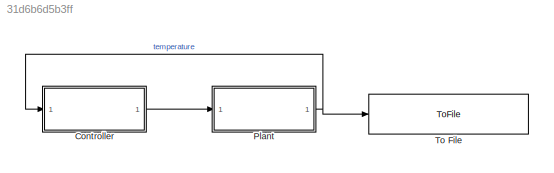
MODEL slx_31d6b6d5b3ff
KIND model
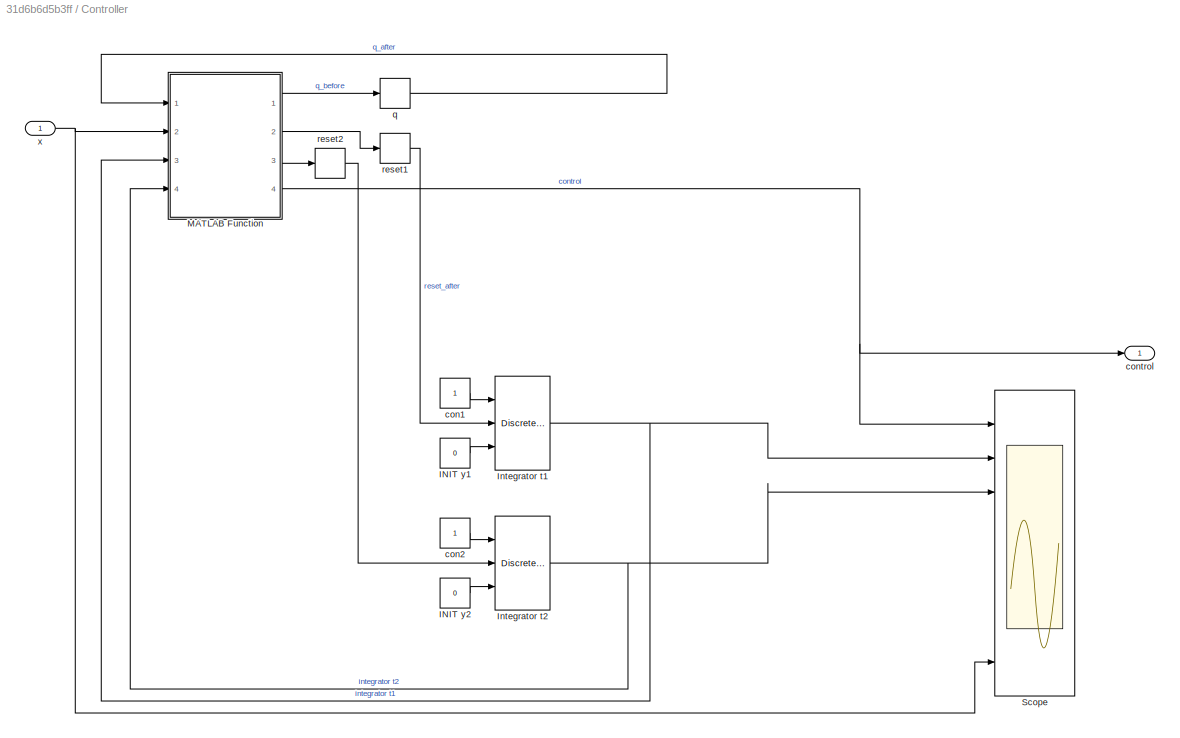
BLOCK [SubSystem] Controller
  Ports = [1, 1]
  RequestExecContextInheritance = off
BLOCK [Constant] Controller/INIT y1
  Value = 0
BLOCK [Constant] Controller/INIT y2
  Value = 0
BLOCK [DiscreteIntegrator] Controller/Integrator t1
  ExternalReset = either
  InitialCondition = 510
  InitialConditionSetting = State (most efficient)
  InitialConditionSource = external
  Ports = [3, 1]
  SampleTime = -1
BLOCK [DiscreteIntegrator] Controller/Integrator t2
  ExternalReset = either
  InitialCondition = 510
  InitialConditionSetting = State (most efficient)
  InitialConditionSource = external
  Ports = [3, 1]
  SampleTime = -1
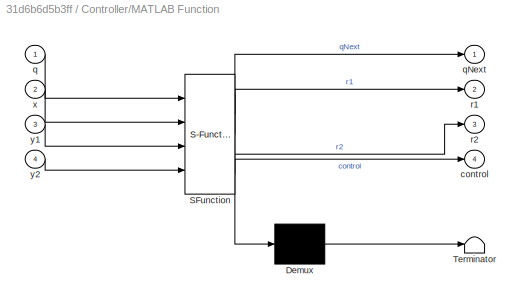
BLOCK [SubSystem] Controller/MATLAB Function
  ErrorFcn = Stateflow.Translate.translate
  PermitHierarchicalResolution = ExplicitOnly
  Ports = [4, 4]
  Priority = 1
  RequestExecContextInheritance = off
  SFBlockType = MATLAB Function
  TreatAsAtomicUnit = on
BLOCK [Demux] Controller/MATLAB Function/ Demux 
  Outputs = 1
  Ports = [1, 1]
BLOCK [S-Function] Controller/MATLAB Function/ SFunction 
  EnableBusSupport = on
  FunctionName = sf_sfun
  PortCounts = [4 5]
  Ports = [4, 5]
  Tag = Stateflow S-Function nuclearReactor 2
BLOCK [Terminator] Controller/MATLAB Function/ Terminator 
BLOCK [Outport] Controller/MATLAB Function/control
  IconDisplay = Port number
  Port = 4
BLOCK [Inport] Controller/MATLAB Function/q
  IconDisplay = Port number
BLOCK [Outport] Controller/MATLAB Function/qNext
  IconDisplay = Port number
BLOCK [Outport] Controller/MATLAB Function/r1
  IconDisplay = Port number
  Port = 2
BLOCK [Outport] Controller/MATLAB Function/r2
  IconDisplay = Port number
  Port = 3
BLOCK [Inport] Controller/MATLAB Function/x
  IconDisplay = Port number
  Port = 2
BLOCK [Inport] Controller/MATLAB Function/y1
  IconDisplay = Port number
  Port = 3
BLOCK [Inport] Controller/MATLAB Function/y2
  IconDisplay = Port number
  Port = 4
BLOCK [Scope] Controller/Scope
  Floating = off
  LimitDataPoints = off
  NumInputPorts = 8
  Ports = [8]
  ShowLegends = on
  TickLabels = on
  YMax = 1~1~1~1~1~1~1~1
  YMin = 0~0~0~0~0~0~0~0
  ZoomMode = xonly
BLOCK [Constant] Controller/con1
BLOCK [Constant] Controller/con2
BLOCK [Outport] Controller/control
  IconDisplay = Port number
BLOCK [Memory] Controller/q
  LinearizeMemory = on
BLOCK [Memory] Controller/reset1
  LinearizeMemory = on
BLOCK [Memory] Controller/reset2
  LinearizeMemory = on
BLOCK [Inport] Controller/x
  IconDisplay = Port number
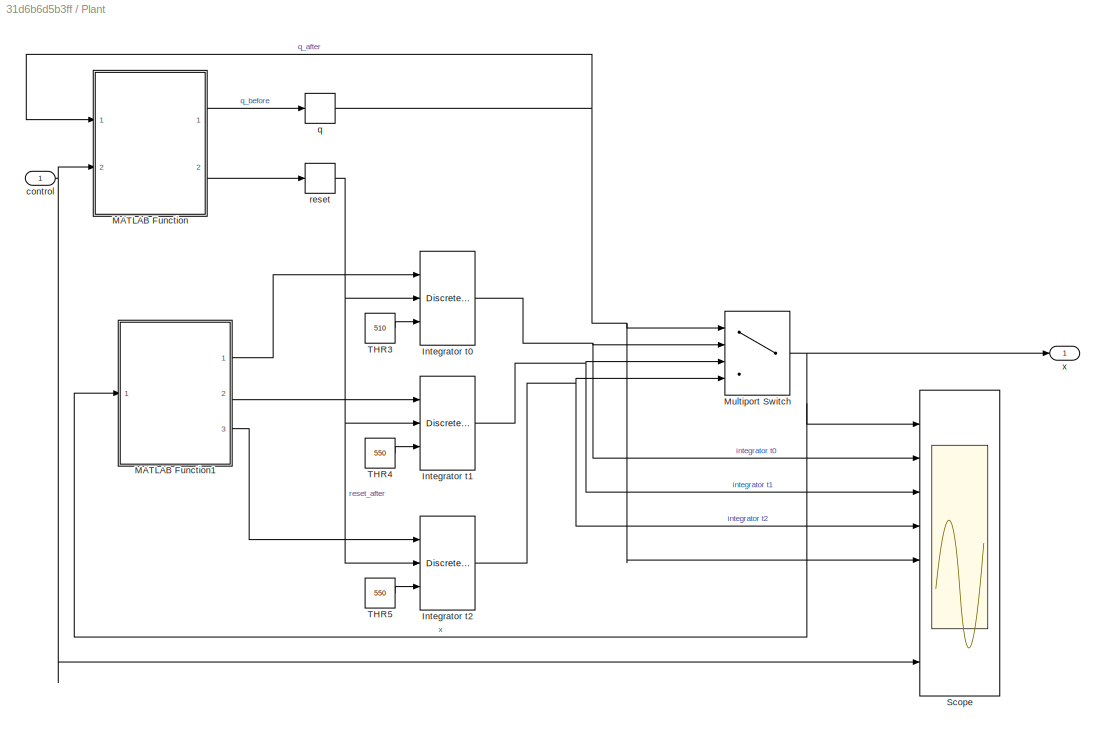
BLOCK [SubSystem] Plant
  Ports = [1, 1]
  RequestExecContextInheritance = off
BLOCK [DiscreteIntegrator] Plant/Integrator t0
  ExternalReset = either
  InitialCondition = 510
  InitialConditionSetting = State (most efficient)
  InitialConditionSource = external
  Ports = [3, 1]
  SampleTime = -1
BLOCK [DiscreteIntegrator] Plant/Integrator t1
  ExternalReset = either
  InitialCondition = 510
  InitialConditionSetting = State (most efficient)
  InitialConditionSource = external
  Ports = [3, 1]
  SampleTime = -1
BLOCK [DiscreteIntegrator] Plant/Integrator t2
  ExternalReset = either
  InitialCondition = 510
  InitialConditionSetting = State (most efficient)
  InitialConditionSource = external
  Ports = [3, 1]
  SampleTime = -1
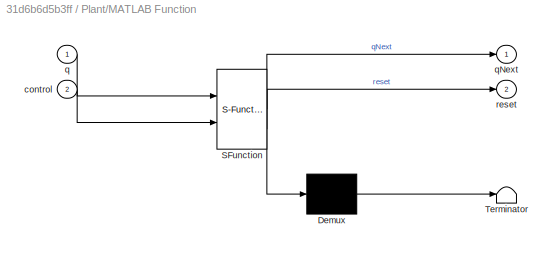
BLOCK [SubSystem] Plant/MATLAB Function
  ErrorFcn = Stateflow.Translate.translate
  PermitHierarchicalResolution = ExplicitOnly
  Ports = [2, 2]
  Priority = 1
  RequestExecContextInheritance = off
  SFBlockType = MATLAB Function
  TreatAsAtomicUnit = on
BLOCK [Demux] Plant/MATLAB Function/ Demux 
  Outputs = 1
  Ports = [1, 1]
BLOCK [S-Function] Plant/MATLAB Function/ SFunction 
  EnableBusSupport = on
  FunctionName = sf_sfun
  PortCounts = [2 3]
  Ports = [2, 3]
  Tag = Stateflow S-Function nuclearReactor 1
BLOCK [Terminator] Plant/MATLAB Function/ Terminator 
BLOCK [Inport] Plant/MATLAB Function/control
  IconDisplay = Port number
  Port = 2
BLOCK [Inport] Plant/MATLAB Function/q
  IconDisplay = Port number
BLOCK [Outport] Plant/MATLAB Function/qNext
  IconDisplay = Port number
BLOCK [Outport] Plant/MATLAB Function/reset
  IconDisplay = Port number
  Port = 2
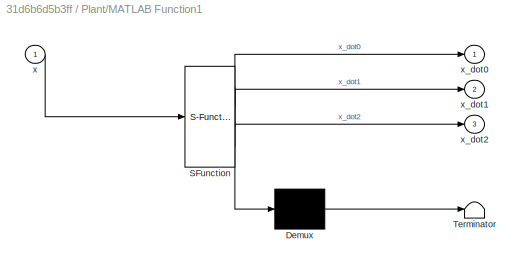
BLOCK [SubSystem] Plant/MATLAB Function1
  ErrorFcn = Stateflow.Translate.translate
  PermitHierarchicalResolution = ExplicitOnly
  Ports = [1, 3]
  Priority = 1
  RequestExecContextInheritance = off
  SFBlockType = MATLAB Function
  TreatAsAtomicUnit = on
BLOCK [Demux] Plant/MATLAB Function1/ Demux 
  Outputs = 1
  Ports = [1, 1]
BLOCK [S-Function] Plant/MATLAB Function1/ SFunction 
  EnableBusSupport = on
  FunctionName = sf_sfun
  PortCounts = [1 4]
  Ports = [1, 4]
  Tag = Stateflow S-Function nuclearReactor 3
BLOCK [Terminator] Plant/MATLAB Function1/ Terminator 
BLOCK [Inport] Plant/MATLAB Function1/x
  IconDisplay = Port number
BLOCK [Outport] Plant/MATLAB Function1/x_dot0
  IconDisplay = Port number
BLOCK [Outport] Plant/MATLAB Function1/x_dot1
  IconDisplay = Port number
  Port = 2
BLOCK [Outport] Plant/MATLAB Function1/x_dot2
  IconDisplay = Port number
  Port = 3
BLOCK [MultiPortSwitch] Plant/Multiport Switch
  DataPortOrder = Zero-based contiguous
  InputSameDT = off
  Ports = [4, 1]
  SaturateOnIntegerOverflow = off
BLOCK [Scope] Plant/Scope
  Floating = off
  LegendLocations = 0.11207     0.94247      0.1185    0.020612\n0.70514     0.81129       0.221    0.020612\n0.70514     0.68978       0.221    0.020612\n0.70514     0.56828       0.221    0.020612\n0.75226     0.44677     0.17388    0.020612\n0.72161     0.32527     0.20453    0.020612\n0.72161     0.20484     0.20453    0.020612\n0.72161    0.083331     0.17151    0.020612
  LimitDataPoints = off
  NumInputPorts = 8
  Ports = [8]
  ShowLegends = on
  TickLabels = on
  YMax = 40~20~20~30~3~3~1~1
  YMin = 0~0~0~10~1~1~0~-1
  ZoomMode = xonly
BLOCK [Constant] Plant/THR3
  Value = 510
BLOCK [Constant] Plant/THR4
  Value = 550
BLOCK [Constant] Plant/THR5
  Value = 550
BLOCK [Inport] Plant/control
  IconDisplay = Port number
BLOCK [Memory] Plant/q
  LinearizeMemory = on
BLOCK [Memory] Plant/reset
  LinearizeMemory = on
BLOCK [Outport] Plant/x
  IconDisplay = Port number
BLOCK [ToFile] To File
  Filename = nuclearReactorTemp.mat
  MatrixName = Temp
  Ports = [1]
LINE Controller/INIT y1:1 -> Controller/Integrator t1:3
LINE Controller/INIT y2:1 -> Controller/Integrator t2:3
NET Controller/Integrator t1:1 -> Controller/MATLAB Function:3, Controller/Scope:2
NET Controller/Integrator t2:1 -> Controller/MATLAB Function:4, Controller/Scope:3
LINE Controller/MATLAB Function:1 -> Controller/q:1
LINE Controller/MATLAB Function:2 -> Controller/reset1:1
LINE Controller/MATLAB Function:3 -> Controller/reset2:1
NET Controller/MATLAB Function:4 -> Controller/Scope:1, Controller/control:1
LINE Controller/con1:1 -> Controller/Integrator t1:1
LINE Controller/con2:1 -> Controller/Integrator t2:1
LINE Controller/q:1 -> Controller/MATLAB Function:1
LINE Controller/reset1:1 -> Controller/Integrator t1:2
LINE Controller/reset2:1 -> Controller/Integrator t2:2
NET Controller/x:1 -> Controller/MATLAB Function:2, Controller/Scope:8
LINE Controller:1 -> Plant:1
NET Plant/Integrator t0:1 -> Plant/Multiport Switch:2, Plant/Scope:2
NET Plant/Integrator t1:1 -> Plant/Multiport Switch:3, Plant/Scope:3
NET Plant/Integrator t2:1 -> Plant/Multiport Switch:4, Plant/Scope:4
LINE Plant/MATLAB Function1:1 -> Plant/Integrator t0:1
LINE Plant/MATLAB Function1:2 -> Plant/Integrator t1:1
LINE Plant/MATLAB Function1:3 -> Plant/Integrator t2:1
LINE Plant/MATLAB Function:1 -> Plant/q:1
LINE Plant/MATLAB Function:2 -> Plant/reset:1
NET Plant/Multiport Switch:1 -> Plant/MATLAB Function1:1, Plant/Scope:1, Plant/x:1
LINE Plant/THR3:1 -> Plant/Integrator t0:3
LINE Plant/THR4:1 -> Plant/Integrator t1:3
LINE Plant/THR5:1 -> Plant/Integrator t2:3
NET Plant/control:1 -> Plant/MATLAB Function:2, Plant/Scope:8
NET Plant/q:1 -> Plant/MATLAB Function:1, Plant/Multiport Switch:1, Plant/Scope:5
NET Plant/reset:1 -> Plant/Integrator t0:2, Plant/Integrator t1:2, Plant/Integrator t2:2
NET Plant:1 -> Controller:1, To File:1
note: NET lines group one-source signal fan-out (src -> all destinations, sorted); 1:1 wires keep LINE
CHART Plant/MATLAB Function states=1 transitions=1
  STATE_LABEL 'eML_blk_kernel()'
  STATE_LABEL 'SCRIPT:\n\n\nfunction [qNext,reset]  = phi(q, control)\n%#codegen\n% control {-1 undefined, 0 add1, 1 remove1, 2 add2, 3 remove2}\n\nundef =0;\nadd1 = 1;\nremove1 =2;\nadd2 = 3;\nremove2 =4;\nc=10;\n\nif q==0 \n    %When plant is in T0 ("No Rod")\n    if control ==add1\n        qNext=1;\n        reset=1;\n    elseif control ==add2\n        qNext=2;\n        reset=1;\n    else\n        qNext=0;\n        reset=0;\n    end;\n...<+425ch>'
CHART Controller/MATLAB Function states=1 transitions=1
  STATE_LABEL 'eML_blk_kernel()'
  STATE_LABEL 'SCRIPT:\n\n\nfunction [qNext,r1,r2,control]  = phi(q, x, y1, y2)\n%#codegen\n% control {-1 undefined, 0 add1, 1 remove1, 2 add2, 3 remove2}\n\nundef =0;\nadd1 = 1;\nremove1 =2;\nadd2 = 3;\nremove2 =4;\nc=15;\n\nif q==0 \n    %When plant is in T0 ("No Rod")\n    if x > 550 && y1 >= c && y2<c\n        qNext=1;\n        r1=0; r2=0;\n        control=add1;\n    elseif x>550 && y2>=c\n        qNext=2;\n        r1=0; r2=0;\n  ...<+660ch>'
CHART Plant/MATLAB Function1 states=1 transitions=1
  STATE_LABEL 'eML_blk_kernel()'
  STATE_LABEL 'SCRIPT:\nfunction [x_dot0, x_dot1, x_dot2] = ODEs(x)\n%#codegen\nx_dot0=0.1*x-50;\nx_dot1=0.1*x-56;\nx_dot2=0.1*x-60;\n\n'
